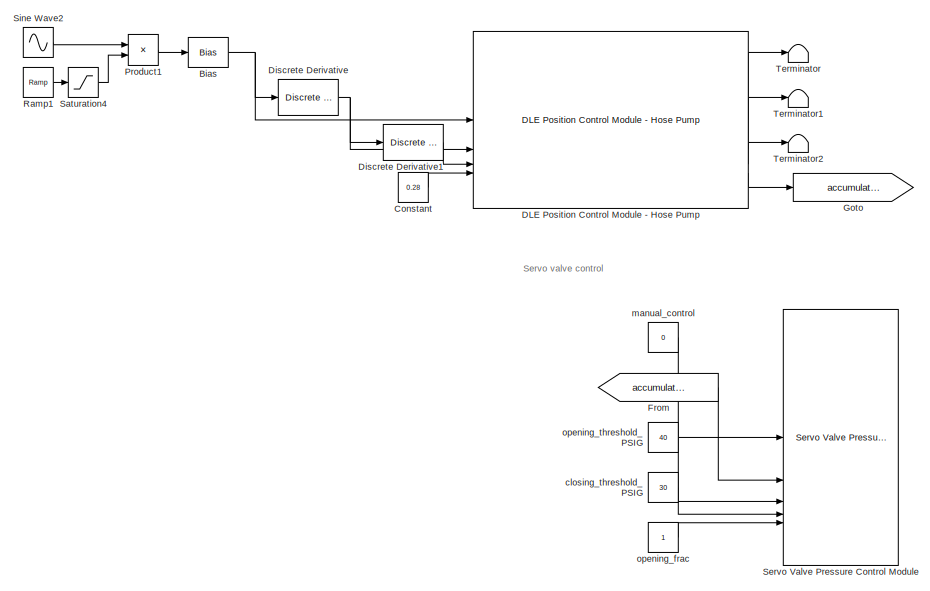
[diagram: root canvas - part 1/2, left side, full height]
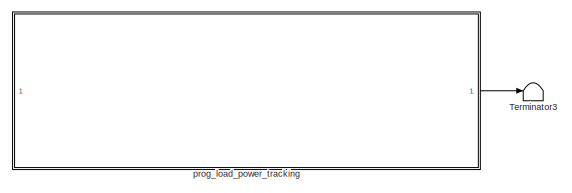
[diagram: root canvas - part 2/2, top right region]
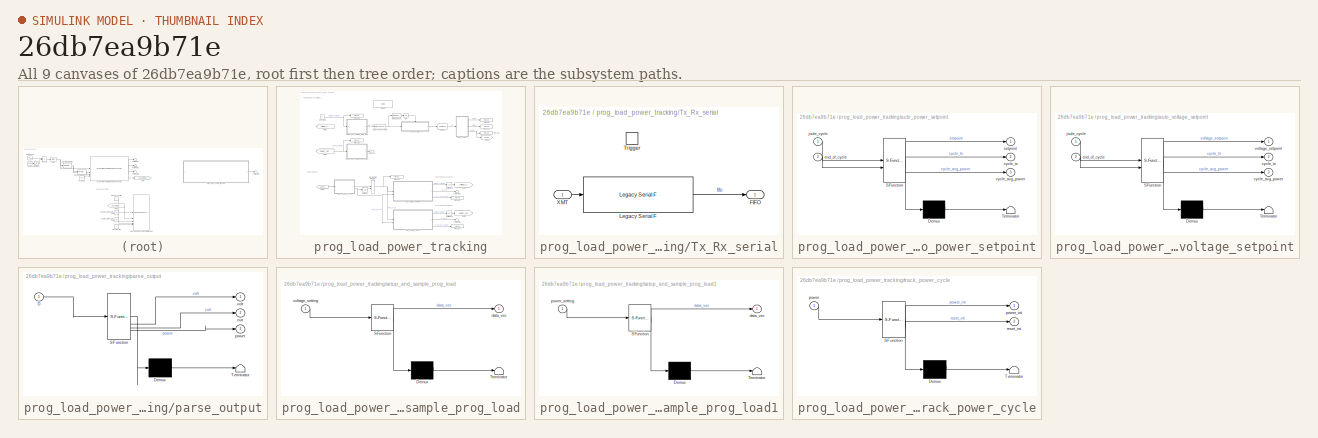
[diagram: thumbnail index - all 9 canvases of the model, root first then tree order]
MODEL slx_26db7ea9b71e
KIND model
CONFIG AbsTol = auto
CONFIG EnableMultiTasking = off
CONFIG FixedStep = 0.0001
CONFIG MaxStep = auto
CONFIG MinStep = auto
CONFIG RelTol = 1e-3
CONFIG SampleTimeConstraint = Unconstrained
CONFIG SolverName = FixedStepAuto
CONFIG StartTime = 0.0
CONFIG StopTime = inf
BLOCK [Bias] Bias
  Bias = 0.17
  SaturateOnIntegerOverflow = off
BLOCK [Constant] Constant
  Value = 0.28
BLOCK [Reference] DLE Position Control Module - Hose Pump  REF=SG_DLE_position_control_module_hose_pump/DLE Position Control Module - Hose Pump
  SourceBlock = SG_DLE_position_control_module_hose_pump/DLE Position Control Module - Hose Pump
  SourceType = SubSystem
BLOCK [Reference] Discrete Derivative  REF=simulink/Discrete/Discrete Derivative
  SourceBlock = simulink/Discrete/Discrete Derivative
  SourceType = Discrete Derivative
BLOCK [Reference] Discrete Derivative1  REF=simulink/Discrete/Discrete Derivative
  SourceBlock = simulink/Discrete/Discrete Derivative
  SourceType = Discrete Derivative
BLOCK [From] From
  GotoTag = accumulator_PSIG
BLOCK [Goto] Goto
  GotoTag = accumulator_PSIG
BLOCK [Product] Product1
BLOCK [Reference] Ramp1  REF=simulink/Sources/Ramp
  SourceBlock = simulink/Sources/Ramp
  SourceType = Ramp
BLOCK [Saturate] Saturation4
  LowerLimit = 0
  UpperLimit = 1
BLOCK [Reference] Servo Valve Pressure Control Module  REF=servo_valve_pressure_control_module/Servo Valve Pressure Control Module  (lib defined in slx_62a98533b265)
  SourceBlock = servo_valve_pressure_control_module/Servo Valve Pressure Control Module
  SourceType = SubSystem
BLOCK [Sin] Sine Wave2
  Amplitude = 0.05
  Frequency = 2*pi/5
  SampleTime = 0.0001
BLOCK [Terminator] Terminator
BLOCK [Terminator] Terminator1
BLOCK [Terminator] Terminator2
BLOCK [Terminator] Terminator3
BLOCK [Constant] closing_threshold_PSIG
  Value = 30
BLOCK [Constant] manual_control
  SampleTime = 0.0001
  Value = 0
BLOCK [Constant] opening_frac
BLOCK [Constant] opening_threshold_PSIG
  Value = 40
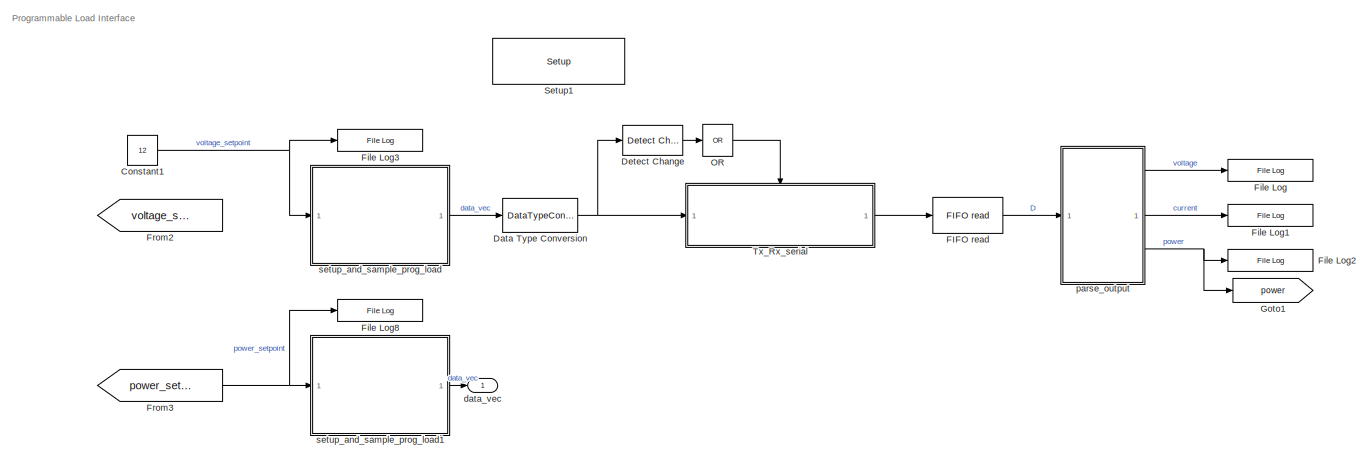
[diagram: prog_load_power_tracking - part 1/2, full width, top band]
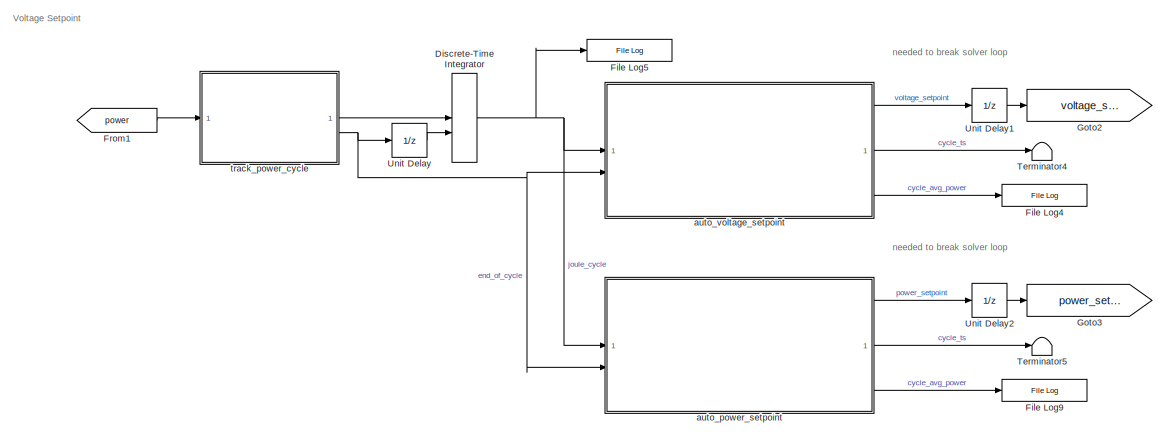
[diagram: prog_load_power_tracking - part 2/2, full width, bottom band]
BLOCK [SubSystem] prog_load_power_tracking
  Commented = on
BLOCK [Constant] prog_load_power_tracking/Constant1
  Value = 12
BLOCK [DataTypeConversion] prog_load_power_tracking/Data Type Conversion
  OutDataTypeStr = uint16
  RndMeth = Floor
  SaturateOnIntegerOverflow = off
BLOCK [Reference] prog_load_power_tracking/Detect Change  REF=simulink/Logic and Bit
Operations/Detect
Change
  SourceBlock = simulink/Logic and Bit\nOperations/Detect\nChange
  SourceType = Detect Change
BLOCK [DiscreteIntegrator] prog_load_power_tracking/Discrete-Time Integrator
  ExternalReset = rising
  ICPrevOutput = DiscIntNeverNeededParam
  ICPrevScaledInput = DiscIntNeverNeededParam
  InitialConditionSetting = Auto
  SampleTime = -1
BLOCK [Reference] prog_load_power_tracking/FIFO read  REF=slrealtimeseriallib/FIFO read
  SourceBlock = slrealtimeseriallib/FIFO read
  SourceType = FIFO Block: reader
BLOCK [Reference] prog_load_power_tracking/File Log  REF=slrealtimeloglib/File Log
  SourceBlock = slrealtimeloglib/File Log
  SourceType = slrealtimeloggingblock
BLOCK [Reference] prog_load_power_tracking/File Log1  REF=slrealtimeloglib/File Log
  SourceBlock = slrealtimeloglib/File Log
  SourceType = slrealtimeloggingblock
BLOCK [Reference] prog_load_power_tracking/File Log2  REF=slrealtimeloglib/File Log
  SourceBlock = slrealtimeloglib/File Log
  SourceType = slrealtimeloggingblock
BLOCK [Reference] prog_load_power_tracking/File Log3  REF=slrealtimeloglib/File Log
  SourceBlock = slrealtimeloglib/File Log
  SourceType = slrealtimeloggingblock
BLOCK [Reference] prog_load_power_tracking/File Log4  REF=slrealtimeloglib/File Log
  SourceBlock = slrealtimeloglib/File Log
  SourceType = slrealtimeloggingblock
BLOCK [Reference] prog_load_power_tracking/File Log5  REF=slrealtimeloglib/File Log
  SourceBlock = slrealtimeloglib/File Log
  SourceType = slrealtimeloggingblock
BLOCK [Reference] prog_load_power_tracking/File Log8  REF=slrealtimeloglib/File Log
  Commented = on
  SourceBlock = slrealtimeloglib/File Log
  SourceType = slrealtimeloggingblock
BLOCK [Reference] prog_load_power_tracking/File Log9  REF=slrealtimeloglib/File Log
  Commented = on
  SourceBlock = slrealtimeloglib/File Log
  SourceType = slrealtimeloggingblock
BLOCK [From] prog_load_power_tracking/From1
  GotoTag = power
BLOCK [From] prog_load_power_tracking/From2
  Commented = on
  GotoTag = voltage_setpoint
BLOCK [From] prog_load_power_tracking/From3
  Commented = on
  GotoTag = power_setpoint
BLOCK [Goto] prog_load_power_tracking/Goto1
  GotoTag = power
BLOCK [Goto] prog_load_power_tracking/Goto2
  GotoTag = voltage_setpoint
BLOCK [Goto] prog_load_power_tracking/Goto3
  Commented = on
  GotoTag = power_setpoint
BLOCK [Logic] prog_load_power_tracking/OR
  AllPortsSameDT = off
  IconShape = distinctive
  Inputs = 1
  Operator = OR
  OutDataTypeStr = boolean
BLOCK [Reference] prog_load_power_tracking/Setup1  REF=slrealtimeseriallib/Mainboard/Setup
  SourceBlock = slrealtimeseriallib/Mainboard/Setup
  SourceType = Setup
BLOCK [Terminator] prog_load_power_tracking/Terminator4
BLOCK [Terminator] prog_load_power_tracking/Terminator5
  Commented = on
BLOCK [SubSystem] prog_load_power_tracking/Tx_Rx_serial
BLOCK [Outport] prog_load_power_tracking/Tx_Rx_serial/FIFO
BLOCK [Reference] prog_load_power_tracking/Tx_Rx_serial/Legacy Serial F  REF=slrealtimeseriallib/Mainboard/Legacy Serial F
  SourceBlock = slrealtimeseriallib/Mainboard/Legacy Serial F
  SourceType = Serial F
BLOCK [TriggerPort] prog_load_power_tracking/Tx_Rx_serial/Trigger
  PortDimensions = 1
  StatesWhenEnabling = held
  VariantControl = (inherit)
BLOCK [Inport] prog_load_power_tracking/Tx_Rx_serial/XMT
BLOCK [UnitDelay] prog_load_power_tracking/Unit Delay
  HasFrameUpgradeWarning = on
  SampleTime = -1
BLOCK [UnitDelay] prog_load_power_tracking/Unit Delay1
  HasFrameUpgradeWarning = on
  SampleTime = -1
BLOCK [UnitDelay] prog_load_power_tracking/Unit Delay2
  Commented = on
  HasFrameUpgradeWarning = on
  SampleTime = -1
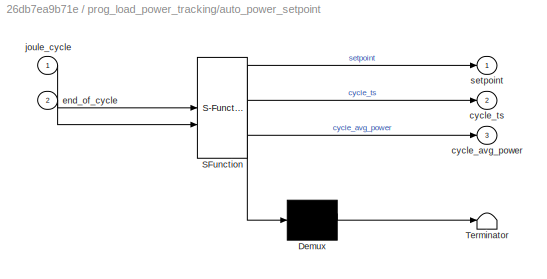
BLOCK [SubSystem] prog_load_power_tracking/auto_power_setpoint
  Commented = on
  ErrorFcn = Stateflow.Translate.translate
  PermitHierarchicalResolution = ExplicitOnly
  SFBlockType = Chart
  SystemSampleTime = 0.001
  TreatAsAtomicUnit = on
BLOCK [Demux] prog_load_power_tracking/auto_power_setpoint/ Demux 
  Outputs = 1
BLOCK [S-Function] prog_load_power_tracking/auto_power_setpoint/ SFunction 
  EnableBusSupport = off
  FunctionName = sf_sfun
  PortCounts = [2 4]
  SFcnIsStateOwnerBlock = off
  SFunctionDeploymentMode = off
  Tag = Stateflow S-Function 6
BLOCK [Terminator] prog_load_power_tracking/auto_power_setpoint/ Terminator 
BLOCK [Outport] prog_load_power_tracking/auto_power_setpoint/cycle_avg_power
  Port = 3
BLOCK [Outport] prog_load_power_tracking/auto_power_setpoint/cycle_ts
  Port = 2
BLOCK [Inport] prog_load_power_tracking/auto_power_setpoint/end_of_cycle
  Port = 2
BLOCK [Inport] prog_load_power_tracking/auto_power_setpoint/joule_cycle
BLOCK [Outport] prog_load_power_tracking/auto_power_setpoint/setpoint
BLOCK [SubSystem] prog_load_power_tracking/auto_voltage_setpoint
  ErrorFcn = Stateflow.Translate.translate
  PermitHierarchicalResolution = ExplicitOnly
  SFBlockType = Chart
  SystemSampleTime = 0.001
  TreatAsAtomicUnit = on
BLOCK [Demux] prog_load_power_tracking/auto_voltage_setpoint/ Demux 
  Outputs = 1
BLOCK [S-Function] prog_load_power_tracking/auto_voltage_setpoint/ SFunction 
  EnableBusSupport = off
  FunctionName = sf_sfun
  PortCounts = [2 4]
  SFcnIsStateOwnerBlock = off
  SFunctionDeploymentMode = off
  Tag = Stateflow S-Function 1
BLOCK [Terminator] prog_load_power_tracking/auto_voltage_setpoint/ Terminator 
BLOCK [Outport] prog_load_power_tracking/auto_voltage_setpoint/cycle_avg_power
  Port = 3
BLOCK [Outport] prog_load_power_tracking/auto_voltage_setpoint/cycle_ts
  Port = 2
BLOCK [Inport] prog_load_power_tracking/auto_voltage_setpoint/end_of_cycle
  Port = 2
BLOCK [Inport] prog_load_power_tracking/auto_voltage_setpoint/joule_cycle
BLOCK [Outport] prog_load_power_tracking/auto_voltage_setpoint/voltage_setpoint
BLOCK [Outport] prog_load_power_tracking/data_vec
BLOCK [SubSystem] prog_load_power_tracking/parse_output
  ErrorFcn = Stateflow.Translate.translate
  PermitHierarchicalResolution = ExplicitOnly
  SFBlockType = MATLAB Function
  TreatAsAtomicUnit = on
BLOCK [Demux] prog_load_power_tracking/parse_output/ Demux 
  Outputs = 1
BLOCK [S-Function] prog_load_power_tracking/parse_output/ SFunction 
  EnableBusSupport = off
  FunctionName = sf_sfun
  PortCounts = [1 4]
  SFcnIsStateOwnerBlock = off
  SFunctionDeploymentMode = off
  Tag = Stateflow S-Function 2
BLOCK [Terminator] prog_load_power_tracking/parse_output/ Terminator 
BLOCK [Inport] prog_load_power_tracking/parse_output/D
BLOCK [Outport] prog_load_power_tracking/parse_output/curr
  Port = 2
BLOCK [Outport] prog_load_power_tracking/parse_output/power
  Port = 3
BLOCK [Outport] prog_load_power_tracking/parse_output/volt
BLOCK [SubSystem] prog_load_power_tracking/setup_and_sample_prog_load
  ErrorFcn = Stateflow.Translate.translate
  PermitHierarchicalResolution = ExplicitOnly
  SFBlockType = Test Sequence
  SystemSampleTime = 0.001
  TreatAsAtomicUnit = on
BLOCK [Demux] prog_load_power_tracking/setup_and_sample_prog_load/ Demux 
  Outputs = 1
BLOCK [S-Function] prog_load_power_tracking/setup_and_sample_prog_load/ SFunction 
  EnableBusSupport = off
  FunctionName = sf_sfun
  PortCounts = [1 2]
  SFcnIsStateOwnerBlock = off
  SFunctionDeploymentMode = off
  Tag = Stateflow S-Function 4
BLOCK [Terminator] prog_load_power_tracking/setup_and_sample_prog_load/ Terminator 
BLOCK [Outport] prog_load_power_tracking/setup_and_sample_prog_load/data_vec
BLOCK [Inport] prog_load_power_tracking/setup_and_sample_prog_load/voltage_setting
BLOCK [SubSystem] prog_load_power_tracking/setup_and_sample_prog_load1
  Commented = on
  ErrorFcn = Stateflow.Translate.translate
  PermitHierarchicalResolution = ExplicitOnly
  SFBlockType = Test Sequence
  SystemSampleTime = 0.001
  TreatAsAtomicUnit = on
BLOCK [Demux] prog_load_power_tracking/setup_and_sample_prog_load1/ Demux 
  Outputs = 1
BLOCK [S-Function] prog_load_power_tracking/setup_and_sample_prog_load1/ SFunction 
  EnableBusSupport = off
  FunctionName = sf_sfun
  PortCounts = [1 2]
  SFcnIsStateOwnerBlock = off
  SFunctionDeploymentMode = off
  Tag = Stateflow S-Function 5
BLOCK [Terminator] prog_load_power_tracking/setup_and_sample_prog_load1/ Terminator 
BLOCK [Outport] prog_load_power_tracking/setup_and_sample_prog_load1/data_vec
BLOCK [Inport] prog_load_power_tracking/setup_and_sample_prog_load1/power_setting
BLOCK [SubSystem] prog_load_power_tracking/track_power_cycle
  ErrorFcn = Stateflow.Translate.translate
  PermitHierarchicalResolution = ExplicitOnly
  SFBlockType = Chart
  TreatAsAtomicUnit = on
BLOCK [Demux] prog_load_power_tracking/track_power_cycle/ Demux 
  Outputs = 1
BLOCK [S-Function] prog_load_power_tracking/track_power_cycle/ SFunction 
  EnableBusSupport = off
  FunctionName = sf_sfun
  PortCounts = [1 3]
  SFcnIsStateOwnerBlock = off
  SFunctionDeploymentMode = off
  Tag = Stateflow S-Function 3
BLOCK [Terminator] prog_load_power_tracking/track_power_cycle/ Terminator 
BLOCK [Inport] prog_load_power_tracking/track_power_cycle/power
BLOCK [Outport] prog_load_power_tracking/track_power_cycle/power_int
BLOCK [Outport] prog_load_power_tracking/track_power_cycle/reset_int
  Port = 2
ANNOTATION (root): Servo valve control
ANNOTATION prog_load_power_tracking: Programmable Load Interface
ANNOTATION prog_load_power_tracking: Voltage Setpoint
ANNOTATION prog_load_power_tracking: needed to break solver loop
NET Bias:1 -> DLE Position Control Module - Hose Pump:1, Discrete Derivative:1
LINE Constant:1 -> DLE Position Control Module - Hose Pump:4
LINE DLE Position Control Module - Hose Pump:1 -> Terminator:1
LINE DLE Position Control Module - Hose Pump:2 -> Terminator1:1
LINE DLE Position Control Module - Hose Pump:3 -> Terminator2:1
LINE DLE Position Control Module - Hose Pump:4 -> Goto:1
LINE Discrete Derivative1:1 -> DLE Position Control Module - Hose Pump:3
NET Discrete Derivative:1 -> DLE Position Control Module - Hose Pump:2, Discrete Derivative1:1
LINE From:1 -> Servo Valve Pressure Control Module:2
LINE Product1:1 -> Bias:1
LINE Ramp1:1 -> Saturation4:1
LINE Saturation4:1 -> Product1:2
LINE Sine Wave2:1 -> Product1:1
LINE closing_threshold_PSIG:1 -> Servo Valve Pressure Control Module:4
LINE manual_control:1 -> Servo Valve Pressure Control Module:1
LINE opening_frac:1 -> Servo Valve Pressure Control Module:5
LINE opening_threshold_PSIG:1 -> Servo Valve Pressure Control Module:3
NET prog_load_power_tracking/Constant1:1 -> prog_load_power_tracking/File Log3:1, prog_load_power_tracking/setup_and_sample_prog_load:1
NET prog_load_power_tracking/Data Type Conversion:1 -> prog_load_power_tracking/Detect Change:1, prog_load_power_tracking/Tx_Rx_serial:1
LINE prog_load_power_tracking/Detect Change:1 -> prog_load_power_tracking/OR:1
NET prog_load_power_tracking/Discrete-Time Integrator:1 -> prog_load_power_tracking/File Log5:1, prog_load_power_tracking/auto_power_setpoint:1, prog_load_power_tracking/auto_voltage_setpoint:1
LINE prog_load_power_tracking/FIFO read:1 -> prog_load_power_tracking/parse_output:1
LINE prog_load_power_tracking/From1:1 -> prog_load_power_tracking/track_power_cycle:1
NET prog_load_power_tracking/From3:1 -> prog_load_power_tracking/File Log8:1, prog_load_power_tracking/setup_and_sample_prog_load1:1
LINE prog_load_power_tracking/OR:1 -> prog_load_power_tracking/Tx_Rx_serial:trigger
LINE prog_load_power_tracking/Tx_Rx_serial/Legacy Serial F:1 -> prog_load_power_tracking/Tx_Rx_serial/FIFO:1
LINE prog_load_power_tracking/Tx_Rx_serial/XMT:1 -> prog_load_power_tracking/Tx_Rx_serial/Legacy Serial F:1
LINE prog_load_power_tracking/Tx_Rx_serial:1 -> prog_load_power_tracking/FIFO read:1
LINE prog_load_power_tracking/Unit Delay1:1 -> prog_load_power_tracking/Goto2:1
LINE prog_load_power_tracking/Unit Delay2:1 -> prog_load_power_tracking/Goto3:1
LINE prog_load_power_tracking/Unit Delay:1 -> prog_load_power_tracking/Discrete-Time Integrator:2
LINE prog_load_power_tracking/auto_power_setpoint:1 -> prog_load_power_tracking/Unit Delay2:1
LINE prog_load_power_tracking/auto_power_setpoint:2 -> prog_load_power_tracking/Terminator5:1
LINE prog_load_power_tracking/auto_power_setpoint:3 -> prog_load_power_tracking/File Log9:1
LINE prog_load_power_tracking/auto_voltage_setpoint:1 -> prog_load_power_tracking/Unit Delay1:1
LINE prog_load_power_tracking/auto_voltage_setpoint:2 -> prog_load_power_tracking/Terminator4:1
LINE prog_load_power_tracking/auto_voltage_setpoint:3 -> prog_load_power_tracking/File Log4:1
LINE prog_load_power_tracking/parse_output:1 -> prog_load_power_tracking/File Log:1
LINE prog_load_power_tracking/parse_output:2 -> prog_load_power_tracking/File Log1:1
NET prog_load_power_tracking/parse_output:3 -> prog_load_power_tracking/File Log2:1, prog_load_power_tracking/Goto1:1
LINE prog_load_power_tracking/setup_and_sample_prog_load1:1 -> prog_load_power_tracking/data_vec:1
LINE prog_load_power_tracking/setup_and_sample_prog_load:1 -> prog_load_power_tracking/Data Type Conversion:1
LINE prog_load_power_tracking/track_power_cycle:1 -> prog_load_power_tracking/Discrete-Time Integrator:1
NET prog_load_power_tracking/track_power_cycle:2 -> prog_load_power_tracking/Unit Delay:1, prog_load_power_tracking/auto_power_setpoint:2, prog_load_power_tracking/auto_voltage_setpoint:2
LINE prog_load_power_tracking:1 -> Terminator3:1
note: NET lines group one-source signal fan-out (src -> all destinations, sorted); 1:1 wires keep LINE
CHART prog_load_power_tracking/track_power_cycle states=3 transitions=5
  STATE_LABEL 'zero_pow\nen, du:\n power_int = 0;\ndu:\n reset_int = false;'
  STATE_LABEL 'timeout\nen, du:\n power_int = power;'
  STATE_LABEL 'pos_pow\nen, du:\n power_int = power;'
CHART prog_load_power_tracking/setup_and_sample_prog_load states=7 transitions=10
  STATE_LABEL 'step_1 % hold\ndata_vec = zeros(64, 1);'
  STATE_LABEL "step_2 % set operating condition - CV\ndata_vec(1) = 17; % length of message + CR LF\ndata_vec(2:7) = [58 86 79 76 84 32];\nvolt_set = zeros(1, 8);\nsprf_len = length(sprintf('%.3f', voltage_setting));\nvolt_set(1:sprf_len) = double(sprintf('%.3f', voltage_setting));\nif sprf_len < 8\n    volt_set(sprf_len+1 : 8) = 48;\nend\ndata_vec(8:15) = volt_set;\ndata_vec(16:18) = [86 13 10]; % 'V' CR LF"
  STATE_LABEL 'step_3 % enable device\ndata_vec(1) = 9; % length of message + CR LF\ndata_vec(2:8) = [58 73 78 80 32 79 78];\ndata_vec(9:10) = [13 10]; % CRLF'
  STATE_LABEL 'step_4 % take voltage reading\ndata_vec(1) = 13; % length of message + CR LF\ndata_vec(2:12) = [58 77 69 65 83 58 86 79 76 84 63];\ndata_vec(13:14) = [13 10]; % CRLF'
  STATE_LABEL 'step_5 % take current reading\ndata_vec(1) = 13; % length of message + CR LF\ndata_vec(2:12) = [58 77 69 65 83 58 67 85 82 82 63];\ndata_vec(13:14) = [13 10]; % CRLF'
  STATE_LABEL 'step_6 % take power reading\ndata_vec(1) = 12; % length of message + CR LF\ndata_vec(2:11) = [58 77 69 65 83 58 80 79 87 63];\ndata_vec(12:13) = [13 10]; % CRLF'
  STATE_LABEL "step_7 % set operating condition - CV\ndata_vec(1) = 17; % length of message + CR LF\ndata_vec(2:7) = [58 86 79 76 84 32];\nvolt_set = zeros(1, 8);\nsprf_len = length(sprintf('%.3f', voltage_setting));\nvolt_set(1:sprf_len) = double(sprintf('%.3f', voltage_setting));\nif sprf_len < 8\n    volt_set(sprf_len+1 : 8) = 48;\nend\ndata_vec(8:15) = volt_set;\ndata_vec(16:18) = [86 13 10]; % 'V' CR LF"
CHART prog_load_power_tracking/setup_and_sample_prog_load1 states=7 transitions=10
  STATE_LABEL 'step_1 % hold\ndata_vec = zeros(64, 1);'
  STATE_LABEL "step_2 % set operating condition - CW\ndata_vec(1) = 16; % length of message + CR LF\ndata_vec(2:6) = [58    80    79    87    32];\npower_set = zeros(1, 8);\nsprf_len = length(sprintf('%.3f', power_setting));\npower_set(1:sprf_len) = double(sprintf('%.3f', power_setting));\nif sprf_len < 8\n    power_set(sprf_len+1 : 8) = 48;\nend\ndata_vec(7:14) = power_set;\ndata_vec(15:17) = [87 13 10]; % 'W' CR LF"
  STATE_LABEL 'step_3 % enable device\ndata_vec(1) = 9; % length of message + CR LF\ndata_vec(2:8) = [58 73 78 80 32 79 78];\ndata_vec(9:10) = [13 10]; % CRLF'
  STATE_LABEL 'step_4 % take voltage reading\ndata_vec(1) = 13; % length of message + CR LF\ndata_vec(2:12) = [58 77 69 65 83 58 86 79 76 84 63];\ndata_vec(13:14) = [13 10]; % CRLF'
  STATE_LABEL 'step_5 % take current reading\ndata_vec(1) = 13; % length of message + CR LF\ndata_vec(2:12) = [58 77 69 65 83 58 67 85 82 82 63];\ndata_vec(13:14) = [13 10]; % CRLF'
  STATE_LABEL 'step_6 % take power reading\ndata_vec(1) = 12; % length of message + CR LF\ndata_vec(2:11) = [58 77 69 65 83 58 80 79 87 63];\ndata_vec(12:13) = [13 10]; % CRLF'
  STATE_LABEL "step_7 % set operating condition - CW\ndata_vec(1) = 16; % length of message + CR LF\ndata_vec(2:6) = [58    80    79    87    32];\npower_set = zeros(1, 8);\nsprf_len = length(sprintf('%.3f', power_setting));\npower_set(1:sprf_len) = double(sprintf('%.3f', power_setting));\nif sprf_len < 8\n    power_set(sprf_len+1 : 8) = 48;\nend\ndata_vec(7:14) = power_set;\ndata_vec(15:17) = [87 13 10]; % 'W' CR LF"
CHART prog_load_power_tracking/auto_power_setpoint states=4 transitions=9
  STATE_LABEL 'init\nen:\n setpoint = starting_set;\n setpoint_best = setpoint;\n perf_buffer = zeros(1, num_cycles_per_update);'
  STATE_LABEL 'monitor_cycle\nen:\n cycle_ts(1) = cycle_ts(2); % [cycle_start_ts, end_ts]'
  STATE_LABEL 'calc_cycle_avg_power\nen:\n cycle_ts(2) = t; % [cycle_start_ts, end_ts]\n % cycle_avg_power = joule_cycle / (cycle_ts(2) - cycle_ts(1));\n perf_buffer(perf_buffer_ind) = joule_cycle / (cycle_ts(2) - cycle_ts(1));\n perf_buffer_ind = perf_buffer_ind + 1;'
  STATE_LABEL 'check_for_improvement\nen:\n avg_power_buffer(2) = avg_power_buffer(1);\n cycle_avg_power = mean(perf_buffer);\n avg_power_buffer(1) = cycle_avg_power;\n perf_buffer_ind = 1;\n perf_buffer = zeros(1, num_cycles_per_update);\n %\n %  check if power was improved\n if avg_power_buffer(1) > avg_power_buffer(2) % improvement\n     setpoint_best = setpoint; % record best\n     setpoint = setpoint + setpoint_delta;...<+211ch>'
CHART prog_load_power_tracking/auto_voltage_setpoint states=4 transitions=9
  STATE_LABEL 'init\nen:\n voltage_setpoint = starting_volt_set;\n voltage_setpoint_best = voltage_setpoint;\n perf_buffer = zeros(1, num_cycles_per_update);'
  STATE_LABEL 'monitor_cycle\nen:\n cycle_ts(1) = cycle_ts(2); % [cycle_start_ts, end_ts]'
  STATE_LABEL 'calc_cycle_avg_power\nen:\n cycle_ts(2) = t; % [cycle_start_ts, end_ts]\n % cycle_avg_power = joule_cycle / (cycle_ts(2) - cycle_ts(1));\n perf_buffer(perf_buffer_ind) = joule_cycle / (cycle_ts(2) - cycle_ts(1));\n perf_buffer_ind = perf_buffer_ind + 1;'
  STATE_LABEL 'check_for_improvement\nen:\n avg_power_buffer(2) = avg_power_buffer(1);\n cycle_avg_power = mean(perf_buffer);\n avg_power_buffer(1) = cycle_avg_power;\n perf_buffer_ind = 1;\n perf_buffer = zeros(1, num_cycles_per_update);\n %\n %  check if power was improved\n if avg_power_buffer(1) > avg_power_buffer(2) % improvement\n     voltage_setpoint_best = voltage_setpoint; % record best\n     voltage_setpoint = vo...<+435ch>'
CHART prog_load_power_tracking/parse_output states=1 transitions=1
  STATE_LABEL 'eML_blk_kernel()'
  STATE_LABEL "SCRIPT:\nfunction [volt, curr, power] = fcn(D)\n\npersistent volt_pers\npersistent curr_pers\npersistent power_pers\n\nif isempty(volt_pers) % set persistent variable values\n    volt_pers = 0;\n    curr_pers = 0;\n    power_pers = 0;\nend\n\nif D(1) ~= 0\n    switch D(7)\n        case 86 % 'V' --> voltage reading\n            volt_pers = real(str2double(char(D(1:6))));\n        case 87 % 'W' --> power reading\n   ...<+229ch>"
CHART  states=0 transitions=0
CHART  states=0 transitions=0
CHART  states=0 transitions=0
CHART  states=0 transitions=0
CHART  states=0 transitions=0
CHART  states=0 transitions=0
